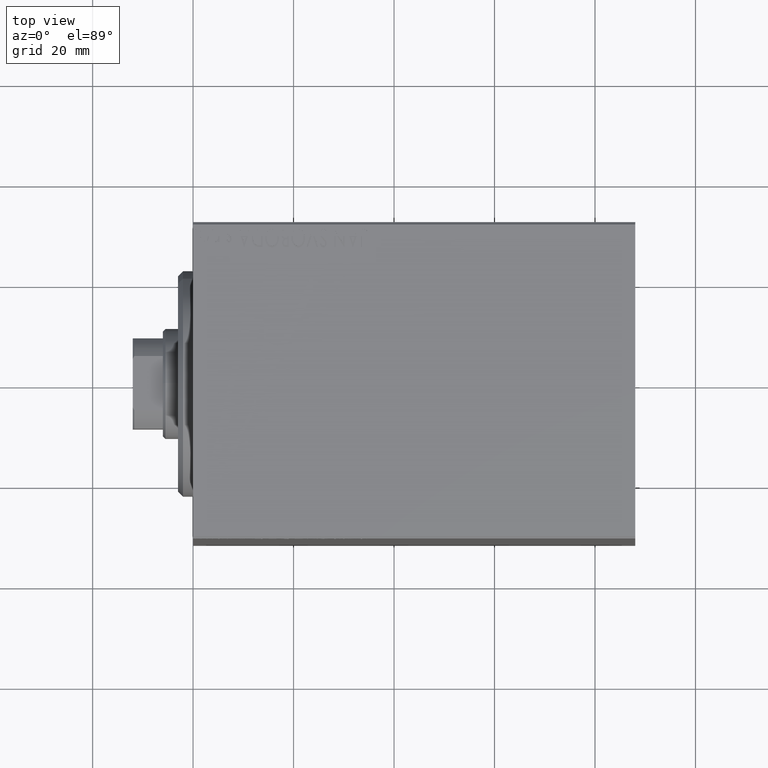
[diagram: clean part render]
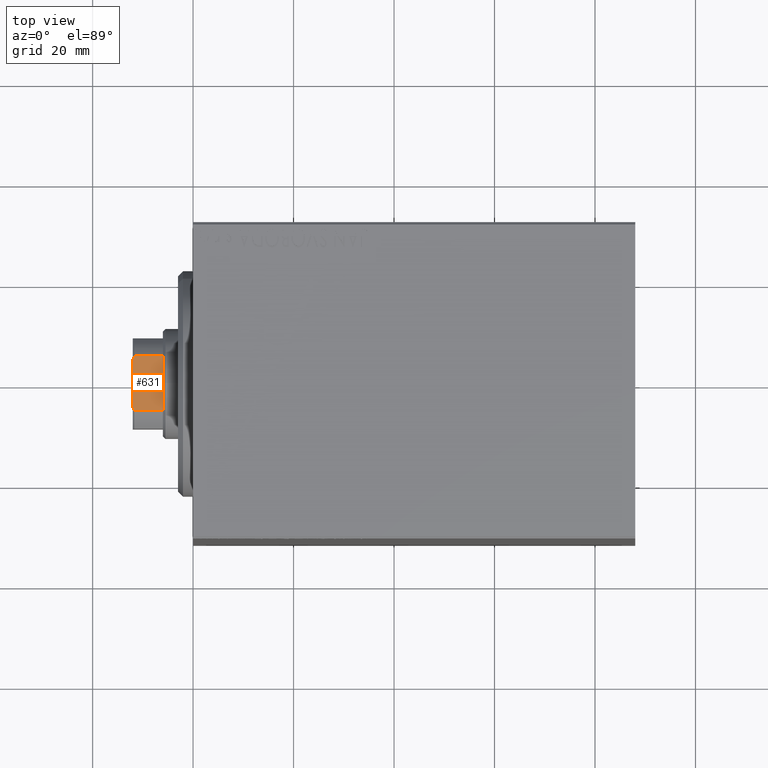
[diagram: same view with one face highlighted and labeled with its STEP entity id]
A machine part, top view. The second image highlights one B-rep face of the part: STEP entity #631.
In plain terms, the highlighted planar face has unit normal (-0, -0, -1).
Its self-contained STEP definition (entity closure, byte-faithful):
#258 = CARTESIAN_POINT ( 'NONE',  ( 9.000000000000001776, -4.799999999999974065, 88.00000000000000000 ) ) ;
#506 = CARTESIAN_POINT ( 'NONE',  ( 8.999999999999996447, -5.408326913195990571, -0.001000000000001000089 ) ) ;
#631 = ADVANCED_FACE ( 'NONE', ( #11292 ), #24858, .F. ) ;
#908 = CARTESIAN_POINT ( 'NONE',  ( 8.999999999999998224, 4.799999999999978506, 88.00000000000000000 ) ) ;
#2587 = ORIENTED_EDGE ( 'NONE', *, *, #43231, .F. ) ;
#2904 = VERTEX_POINT ( 'NONE', #22356 ) ;
#3455 = LINE ( 'NONE', #27037, #12984 ) ;
#4326 = ORIENTED_EDGE ( 'NONE', *, *, #36742, .T. ) ;
#4793 = CARTESIAN_POINT ( 'NONE',  ( 8.999999999999998224, 5.207299490555467258, 87.80354495430066208 ) ) ;
#6729 = EDGE_LOOP ( 'NONE', ( #14173, #4326, #19744, #29281, #2587, #8543 ) ) ;
#6954 = CARTESIAN_POINT ( 'NONE',  ( 8.999999999999996447, -5.408326913195990571, 81.99999999999997158 ) ) ;
#7274 = EDGE_CURVE ( 'NONE', #29768, #24348, #40702, .T. ) ;
#8543 = ORIENTED_EDGE ( 'NONE', *, *, #38673, .T. ) ;
#9893 = LINE ( 'NONE', #23451, #18683 ) ;
#10303 = DIRECTION ( 'NONE',  ( -0.000000000000000000, -0.000000000000000000, 1.000000000000000000 ) ) ;
#10699 = CARTESIAN_POINT ( 'NONE',  ( 8.999999999999996447, -5.408326913195990571, 87.69999999999997442 ) ) ;
#11292 = FACE_OUTER_BOUND ( 'NONE', #6729, .T. ) ;
#12509 = CARTESIAN_POINT ( 'NONE',  ( 8.999999999999998224, 5.408326913195988794, 81.99999999999997158 ) ) ;
#12984 = VECTOR ( 'NONE', #23471, 1000.000000000000000 ) ;
#14033 = CARTESIAN_POINT ( 'NONE',  ( 9.000000000000001776, -5.207299490555465482, 87.80354495430066208 ) ) ;
#14173 = ORIENTED_EDGE ( 'NONE', *, *, #40476, .T. ) ;
#15474 = CARTESIAN_POINT ( 'NONE',  ( 8.999999999999996447, -5.408326913195990571, 87.69999999999997442 ) ) ;
#15783 = B_SPLINE_CURVE_WITH_KNOTS ( 'NONE', 3,
 ( #35053, #4793, #28164, #34826 ),
 .UNSPECIFIED., .F., .F.,
 ( 4, 4 ),
 ( 0.000000000000000000, 0.0006782784334759573179 ),
 .UNSPECIFIED. ) ;
#18683 = VECTOR ( 'NONE', #37035, 1000.000000000000000 ) ;
#19744 = ORIENTED_EDGE ( 'NONE', *, *, #7274, .F. ) ;
#19929 = VECTOR ( 'NONE', #33355, 1000.000000000000000 ) ;
#21512 = DIRECTION ( 'NONE',  ( -1.000000000000000000, -1.927470528863119049E-16, 0.000000000000000000 ) ) ;
#22356 = CARTESIAN_POINT ( 'NONE',  ( 8.999999999999998224, 5.408326913195988794, 87.69999999999997442 ) ) ;
#23451 = CARTESIAN_POINT ( 'NONE',  ( 8.999999999999998224, 8.999999999999998224, 81.99999999999998579 ) ) ;
#23471 = DIRECTION ( 'NONE',  ( -0.000000000000000000, -0.000000000000000000, 1.000000000000000000 ) ) ;
#24348 = VERTEX_POINT ( 'NONE', #908 ) ;
#24858 = PLANE ( 'NONE',  #29813 ) ;
#26959 = B_SPLINE_CURVE_WITH_KNOTS ( 'NONE', 3,
 ( #258, #30939, #14033, #10699 ),
 .UNSPECIFIED., .F., .F.,
 ( 4, 4 ),
 ( 8.673617379884035472E-19, 0.0006782784334759628473 ),
 .UNSPECIFIED. ) ;
#27037 = CARTESIAN_POINT ( 'NONE',  ( 8.999999999999998224, 5.408326913195988794, -0.001000000000001000089 ) ) ;
#28013 = VERTEX_POINT ( 'NONE', #15474 ) ;
#28164 = CARTESIAN_POINT ( 'NONE',  ( 8.999999999999998224, 5.004607318780291969, 87.90371420292690630 ) ) ;
#29281 = ORIENTED_EDGE ( 'NONE', *, *, #37062, .T. ) ;
#29369 = VECTOR ( 'NONE', #10303, 1000.000000000000000 ) ;
#29768 = VERTEX_POINT ( 'NONE', #36222 ) ;
#29813 = AXIS2_PLACEMENT_3D ( 'NONE', #38431, #21512, #35097 ) ;
#30939 = CARTESIAN_POINT ( 'NONE',  ( 9.000000000000001776, -5.004607318780285752, 87.90371420292690630 ) ) ;
#33355 = DIRECTION ( 'NONE',  ( -1.927470528863119049E-16, 1.000000000000000000, -0.000000000000000000 ) ) ;
#34796 = VERTEX_POINT ( 'NONE', #12509 ) ;
#34826 = CARTESIAN_POINT ( 'NONE',  ( 8.999999999999998224, 4.799999999999978506, 88.00000000000000000 ) ) ;
#35053 = CARTESIAN_POINT ( 'NONE',  ( 8.999999999999998224, 5.408326913195988794, 87.69999999999997442 ) ) ;
#35097 = DIRECTION ( 'NONE',  ( 1.927470528863119049E-16, -1.000000000000000000, 0.000000000000000000 ) ) ;
#36222 = CARTESIAN_POINT ( 'NONE',  ( 9.000000000000001776, -4.799999999999974065, 88.00000000000000000 ) ) ;
#36742 = EDGE_CURVE ( 'NONE', #2904, #24348, #15783, .T. ) ;
#37035 = DIRECTION ( 'NONE',  ( -1.927470528863119049E-16, 1.000000000000000000, -0.000000000000000000 ) ) ;
#37062 = EDGE_CURVE ( 'NONE', #29768, #28013, #26959, .T. ) ;
#38431 = CARTESIAN_POINT ( 'NONE',  ( 8.999999999999998224, 8.999999999999998224, 88.00000000000000000 ) ) ;
#38673 = EDGE_CURVE ( 'NONE', #39788, #34796, #9893, .T. ) ;
#39788 = VERTEX_POINT ( 'NONE', #6954 ) ;
#40049 = CARTESIAN_POINT ( 'NONE',  ( 8.999999999999998224, 8.999999999999998224, 88.00000000000000000 ) ) ;
#40476 = EDGE_CURVE ( 'NONE', #34796, #2904, #3455, .T. ) ;
#40702 = LINE ( 'NONE', #40049, #19929 ) ;
#41434 = LINE ( 'NONE', #506, #29369 ) ;
#43231 = EDGE_CURVE ( 'NONE', #39788, #28013, #41434, .T. ) ;